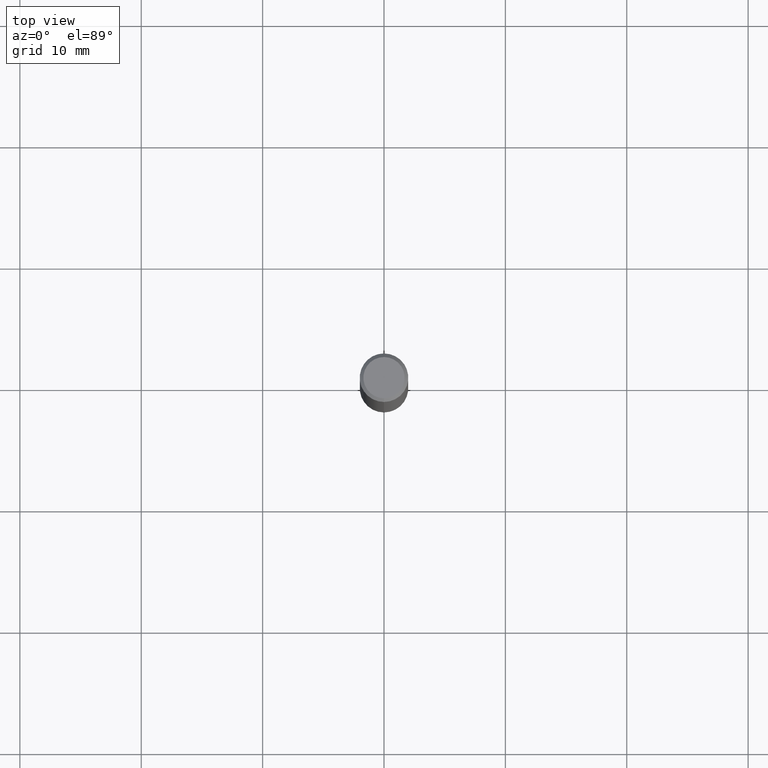
[diagram: clean part render]
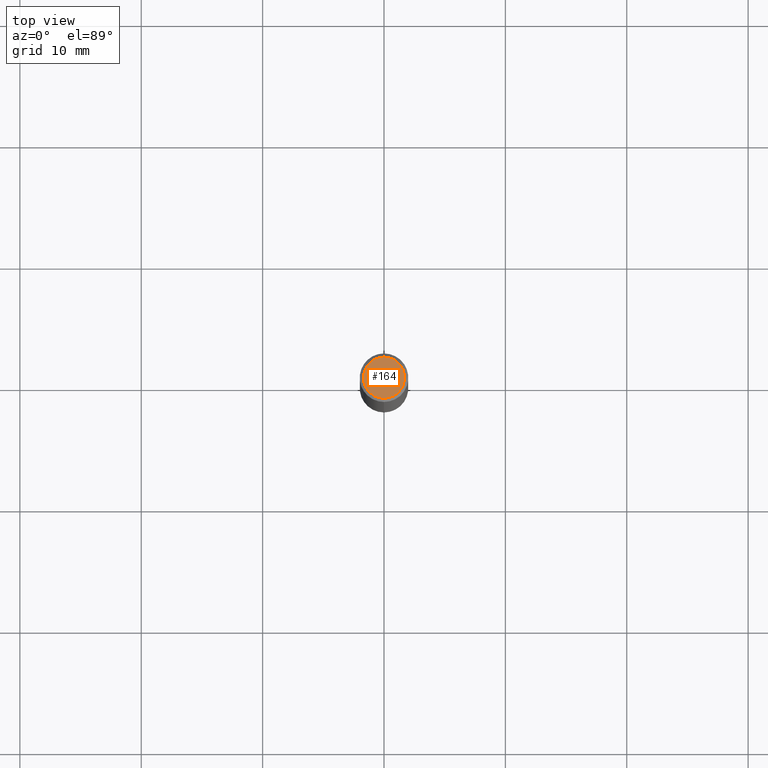
[diagram: same view with one face highlighted and labeled with its STEP entity id]
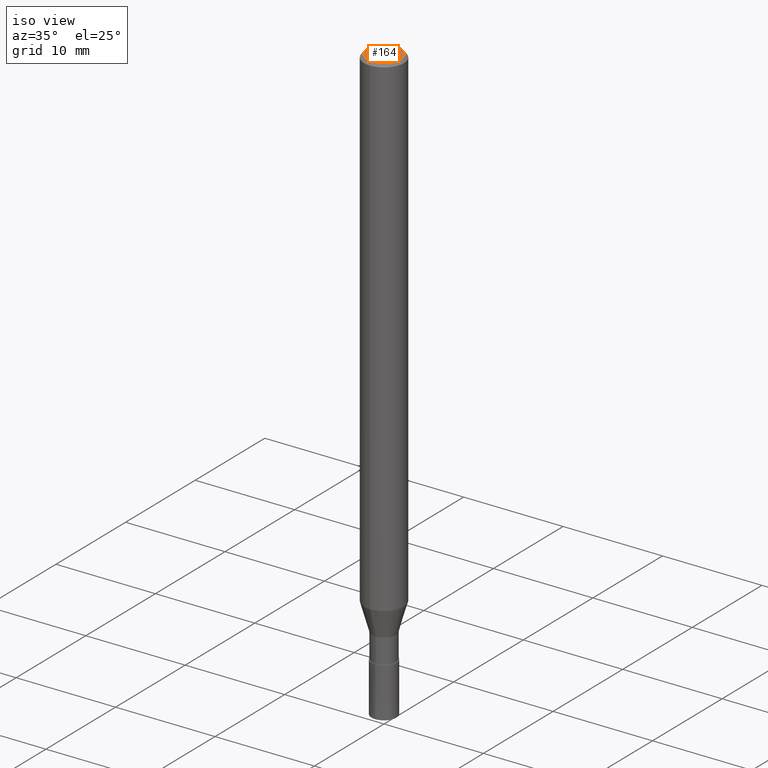
[diagram: same view with one face highlighted and labeled with its STEP entity id]
A machine part, top view. The second image highlights one B-rep face of the part: STEP entity #164.
A second angle (iso view) of the same face is appended — the face is thin or edge-on in the first view.
In plain terms, the highlighted planar face has unit normal (-0, 0, 1).
Its self-contained STEP definition (entity closure, byte-faithful):
#102=VERTEX_POINT('',#241);
#126=VERTEX_POINT('',#267);
#164=ADVANCED_FACE('',(#311),#312,.T.);
#166=EDGE_CURVE('',#102,#126,#314,.T.);
#208=EDGE_CURVE('',#126,#102,#361,.T.);
#241=CARTESIAN_POINT('',(2.08183080149804E-016,-1.7,0.0));
#267=CARTESIAN_POINT('',(0.0,1.7,0.0));
#311=FACE_OUTER_BOUND('',#477,.T.);
#312=PLANE('',#478);
#314=CIRCLE('',#481,1.7);
#361=CIRCLE('',#540,1.7);
#477=EDGE_LOOP('',(#652,#653));
#478=AXIS2_PLACEMENT_3D('',#654,#655,#656);
#481=AXIS2_PLACEMENT_3D('',#657,#658,#659);
#540=AXIS2_PLACEMENT_3D('',#711,#712,#713);
#652=ORIENTED_EDGE('',*,*,#208,.F.);
#653=ORIENTED_EDGE('',*,*,#166,.F.);
#654=CARTESIAN_POINT('',(0.0,0.85,0.0));
#655=DIRECTION('',(-0.0,0.0,1.0));
#656=DIRECTION('',(0.0,-1.0,0.0));
#657=CARTESIAN_POINT('',(0.0,0.0,0.0));
#658=DIRECTION('',(0.0,0.0,-1.0));
#659=DIRECTION('',(0.0,1.0,0.0));
#711=CARTESIAN_POINT('',(0.0,0.0,0.0));
#712=DIRECTION('',(0.0,0.0,-1.0));
#713=DIRECTION('',(0.0,1.0,0.0));